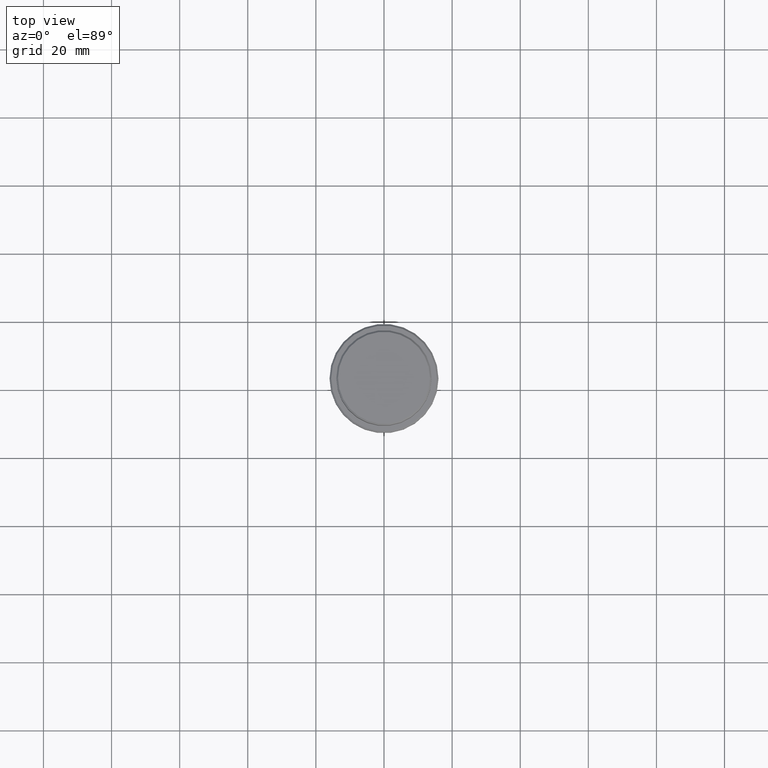
[diagram: clean part render]
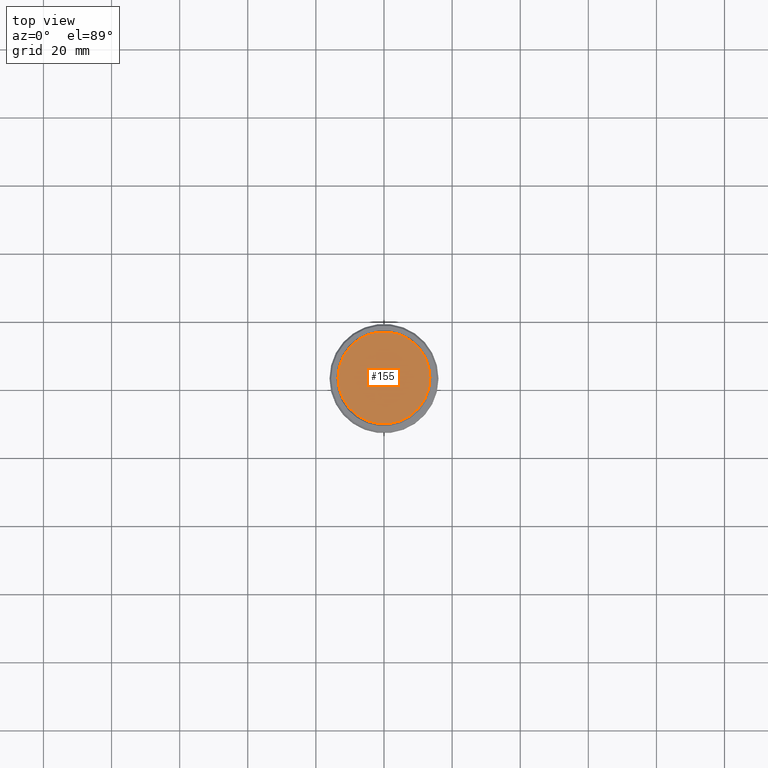
[diagram: same view with one face highlighted and labeled with its STEP entity id]
A machine part, top view. The second image highlights one B-rep face of the part: STEP entity #155.
In plain terms, the highlighted planar face has unit normal (0, -0, 1).
Its self-contained STEP definition (entity closure, byte-faithful):
#155 = ADVANCED_FACE ( 'NONE', ( #198 ), #759, .T. ) ;
#182 = CARTESIAN_POINT ( 'NONE',  ( 13.49999999999998579, 1.683889348827608879E-15, 0.000000000000000000 ) ) ;
#198 = FACE_OUTER_BOUND ( 'NONE', #1270, .T. ) ;
#225 = CARTESIAN_POINT ( 'NONE',  ( 0.000000000000000000, 0.000000000000000000, 0.000000000000000000 ) ) ;
#240 = DIRECTION ( 'NONE',  ( -0.000000000000000000, -0.000000000000000000, 1.000000000000000000 ) ) ;
#294 = CARTESIAN_POINT ( 'NONE',  ( 0.000000000000000000, 0.000000000000000000, 0.000000000000000000 ) ) ;
#304 = ORIENTED_EDGE ( 'NONE', *, *, #617, .T. ) ;
#382 = CIRCLE ( 'NONE', #433, 13.49999999999998579 ) ;
#433 = AXIS2_PLACEMENT_3D ( 'NONE', #902, #240, #1337 ) ;
#568 = CARTESIAN_POINT ( 'NONE',  ( -13.49999999999998579, 0.000000000000000000, 0.000000000000000000 ) ) ;
#617 = EDGE_CURVE ( 'NONE', #1130, #692, #382, .T. ) ;
#692 = VERTEX_POINT ( 'NONE', #182 ) ;
#759 = PLANE ( 'NONE',  #941 ) ;
#852 = DIRECTION ( 'NONE',  ( 1.000000000000000000, 0.000000000000000000, 0.000000000000000000 ) ) ;
#902 = CARTESIAN_POINT ( 'NONE',  ( 0.000000000000000000, 0.000000000000000000, 0.000000000000000000 ) ) ;
#920 = CIRCLE ( 'NONE', #1360, 13.49999999999998579 ) ;
#927 = ORIENTED_EDGE ( 'NONE', *, *, #952, .T. ) ;
#941 = AXIS2_PLACEMENT_3D ( 'NONE', #225, #1320, #976 ) ;
#952 = EDGE_CURVE ( 'NONE', #692, #1130, #920, .T. ) ;
#964 = DIRECTION ( 'NONE',  ( -0.000000000000000000, -0.000000000000000000, 1.000000000000000000 ) ) ;
#976 = DIRECTION ( 'NONE',  ( 1.000000000000000000, 0.000000000000000000, 0.000000000000000000 ) ) ;
#1130 = VERTEX_POINT ( 'NONE', #568 ) ;
#1270 = EDGE_LOOP ( 'NONE', ( #304, #927 ) ) ;
#1320 = DIRECTION ( 'NONE',  ( 0.000000000000000000, -0.000000000000000000, 1.000000000000000000 ) ) ;
#1337 = DIRECTION ( 'NONE',  ( 1.000000000000000000, 0.000000000000000000, 0.000000000000000000 ) ) ;
#1360 = AXIS2_PLACEMENT_3D ( 'NONE', #294, #964, #852 ) ;